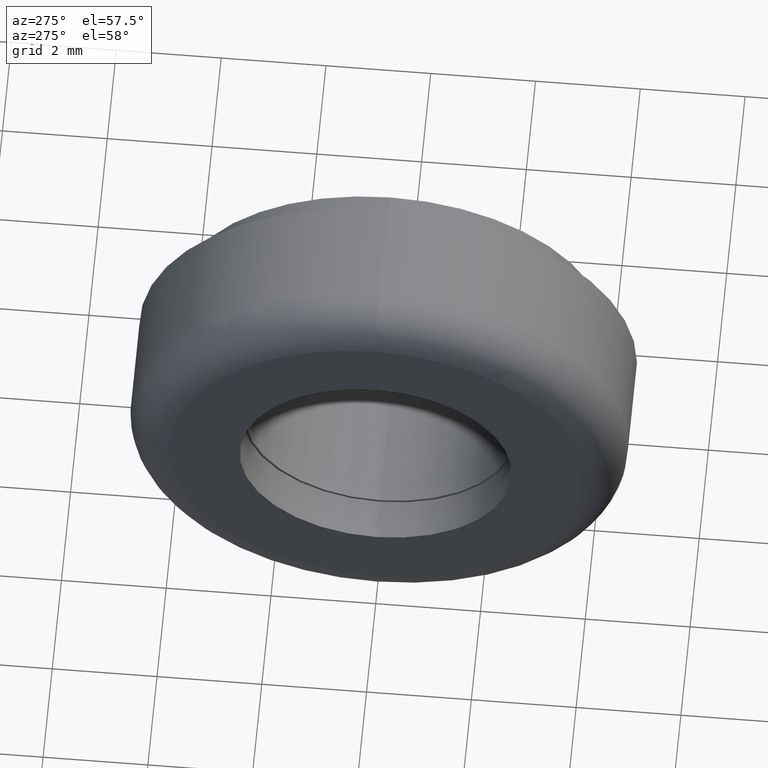
[diagram: clean part render]
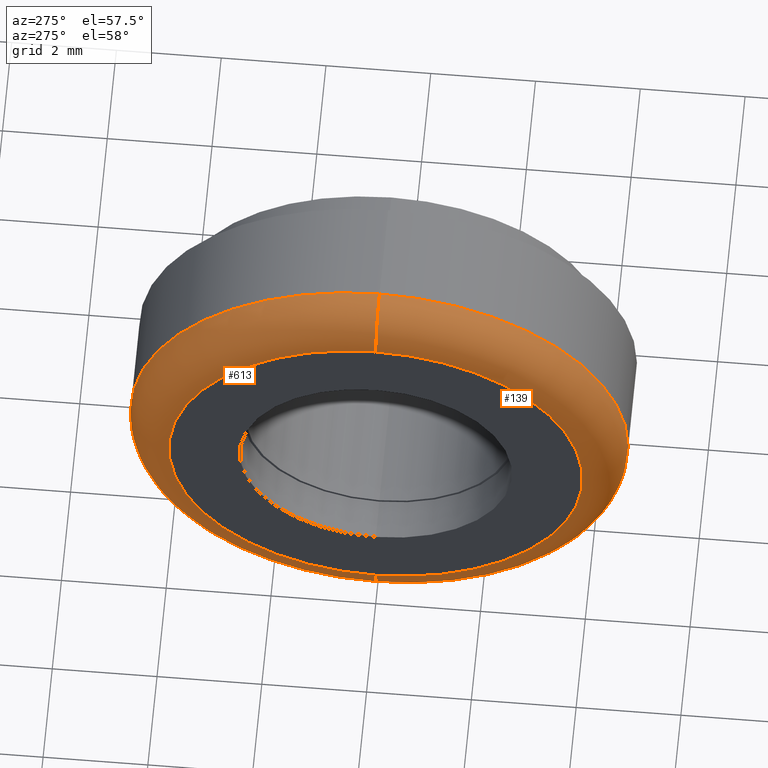
[diagram: same view with one multi-face feature highlighted, each face labeled with its STEP entity id]
A machine part, auxiliary view. The highlighted faces form ONE feature: a constant-radius fillet chain: 2 tangent blend faces with common blend radius 0.8 mm. The faces share edges in the B-rep.
Their STEP definitions:
[1] entity #139 (Torus):
#37 = TOROIDAL_SURFACE ( 'NONE', #553, 3.949999999999999700, 0.8000000000000000400 ) ;
#44 = ORIENTED_EDGE ( 'NONE', *, *, #503, .F. ) ;
#110 = CARTESIAN_POINT ( 'NONE',  ( 0.7999999999999999300, 4.837354856632044100E-016, 3.949999999999999700 ) ) ;
#123 = ORIENTED_EDGE ( 'NONE', *, *, #209, .F. ) ;
#139 = ADVANCED_FACE ( 'NONE', ( #191 ), #37, .T. ) ;
#159 = CIRCLE ( 'NONE', #680, 0.8000000000000003800 ) ;
#165 = DIRECTION ( 'NONE',  ( 1.000000000000000000, 0.0000000000000000000, 0.0000000000000000000 ) ) ;
#174 = DIRECTION ( 'NONE',  ( 0.0000000000000000000, 1.224646799147352000E-016, 1.000000000000000000 ) ) ;
#178 = EDGE_LOOP ( 'NONE', ( #123, #44, #647, #449 ) ) ;
#185 = CARTESIAN_POINT ( 'NONE',  ( 0.0000000000000000000, 5.327213576290986200E-016, 3.949999999999999700 ) ) ;
#191 = FACE_OUTER_BOUND ( 'NONE', #178, .T. ) ;
#195 = CARTESIAN_POINT ( 'NONE',  ( 0.0000000000000000000, 0.0000000000000000000, -3.949999999999999700 ) ) ;
#196 = AXIS2_PLACEMENT_3D ( 'NONE', #262, #653, #317 ) ;
#197 = DIRECTION ( 'NONE',  ( 0.0000000000000000000, -1.000000000000000000, 0.0000000000000000000 ) ) ;
#203 = AXIS2_PLACEMENT_3D ( 'NONE', #259, #646, #308 ) ;
#209 = EDGE_CURVE ( 'NONE', #282, #468, #598, .T. ) ;
#259 = CARTESIAN_POINT ( 'NONE',  ( 0.0000000000000000000, 0.0000000000000000000, 0.0000000000000000000 ) ) ;
#262 = CARTESIAN_POINT ( 'NONE',  ( 0.7999999999999999300, 0.0000000000000000000, 0.0000000000000000000 ) ) ;
#282 = VERTEX_POINT ( 'NONE', #185 ) ;
#292 = CARTESIAN_POINT ( 'NONE',  ( 0.7999999999999999300, 0.0000000000000000000, 4.750000000000000000 ) ) ;
#296 = CIRCLE ( 'NONE', #203, 3.949999999999999700 ) ;
#308 = DIRECTION ( 'NONE',  ( 0.0000000000000000000, 0.0000000000000000000, -1.000000000000000000 ) ) ;
#314 = VERTEX_POINT ( 'NONE', #195 ) ;
#317 = DIRECTION ( 'NONE',  ( 0.0000000000000000000, 0.0000000000000000000, -1.000000000000000000 ) ) ;
#320 = VERTEX_POINT ( 'NONE', #407 ) ;
#407 = CARTESIAN_POINT ( 'NONE',  ( 0.7999999999999999300, 5.817072295949926400E-016, -4.750000000000000000 ) ) ;
#449 = ORIENTED_EDGE ( 'NONE', *, *, #568, .F. ) ;
#468 = VERTEX_POINT ( 'NONE', #292 ) ;
#492 = DIRECTION ( 'NONE',  ( 0.0000000000000000000, 1.000000000000000000, -1.224646799147353200E-016 ) ) ;
#503 = EDGE_CURVE ( 'NONE', #314, #282, #296, .T. ) ;
#517 = DIRECTION ( 'NONE',  ( 0.0000000000000000000, 0.0000000000000000000, -1.000000000000000000 ) ) ;
#553 = AXIS2_PLACEMENT_3D ( 'NONE', #606, #165, #668 ) ;
#568 = EDGE_CURVE ( 'NONE', #468, #320, #713, .T. ) ;
#578 = CARTESIAN_POINT ( 'NONE',  ( 0.7999999999999999300, 0.0000000000000000000, -3.949999999999999700 ) ) ;
#596 = AXIS2_PLACEMENT_3D ( 'NONE', #110, #492, #174 ) ;
#598 = CIRCLE ( 'NONE', #596, 0.8000000000000003800 ) ;
#606 = CARTESIAN_POINT ( 'NONE',  ( 0.7999999999999999300, 0.0000000000000000000, 0.0000000000000000000 ) ) ;
#646 = DIRECTION ( 'NONE',  ( -1.000000000000000000, -0.0000000000000000000, -0.0000000000000000000 ) ) ;
#647 = ORIENTED_EDGE ( 'NONE', *, *, #669, .T. ) ;
#653 = DIRECTION ( 'NONE',  ( 1.000000000000000000, 0.0000000000000000000, 0.0000000000000000000 ) ) ;
#668 = DIRECTION ( 'NONE',  ( 0.0000000000000000000, 0.0000000000000000000, -1.000000000000000000 ) ) ;
#669 = EDGE_CURVE ( 'NONE', #314, #320, #159, .T. ) ;
#680 = AXIS2_PLACEMENT_3D ( 'NONE', #578, #197, #517 ) ;
#713 = CIRCLE ( 'NONE', #196, 4.750000000000000000 ) ;
[2] entity #613 (Torus):
#31 = CARTESIAN_POINT ( 'NONE',  ( 0.7999999999999999300, 0.0000000000000000000, 0.0000000000000000000 ) ) ;
#81 = AXIS2_PLACEMENT_3D ( 'NONE', #526, #207, #587 ) ;
#93 = DIRECTION ( 'NONE',  ( 0.0000000000000000000, 0.0000000000000000000, -1.000000000000000000 ) ) ;
#96 = FACE_OUTER_BOUND ( 'NONE', #380, .T. ) ;
#99 = ORIENTED_EDGE ( 'NONE', *, *, #669, .F. ) ;
#110 = CARTESIAN_POINT ( 'NONE',  ( 0.7999999999999999300, 4.837354856632044100E-016, 3.949999999999999700 ) ) ;
#131 = CIRCLE ( 'NONE', #231, 4.750000000000000000 ) ;
#159 = CIRCLE ( 'NONE', #680, 0.8000000000000003800 ) ;
#174 = DIRECTION ( 'NONE',  ( 0.0000000000000000000, 1.224646799147352000E-016, 1.000000000000000000 ) ) ;
#185 = CARTESIAN_POINT ( 'NONE',  ( 0.0000000000000000000, 5.327213576290986200E-016, 3.949999999999999700 ) ) ;
#195 = CARTESIAN_POINT ( 'NONE',  ( 0.0000000000000000000, 0.0000000000000000000, -3.949999999999999700 ) ) ;
#197 = DIRECTION ( 'NONE',  ( 0.0000000000000000000, -1.000000000000000000, 0.0000000000000000000 ) ) ;
#207 = DIRECTION ( 'NONE',  ( -1.000000000000000000, -0.0000000000000000000, -0.0000000000000000000 ) ) ;
#209 = EDGE_CURVE ( 'NONE', #282, #468, #598, .T. ) ;
#231 = AXIS2_PLACEMENT_3D ( 'NONE', #31, #423, #93 ) ;
#249 = TOROIDAL_SURFACE ( 'NONE', #303, 3.949999999999999700, 0.8000000000000000400 ) ;
#282 = VERTEX_POINT ( 'NONE', #185 ) ;
#292 = CARTESIAN_POINT ( 'NONE',  ( 0.7999999999999999300, 0.0000000000000000000, 4.750000000000000000 ) ) ;
#293 = ORIENTED_EDGE ( 'NONE', *, *, #209, .T. ) ;
#303 = AXIS2_PLACEMENT_3D ( 'NONE', #372, #648, #478 ) ;
#314 = VERTEX_POINT ( 'NONE', #195 ) ;
#320 = VERTEX_POINT ( 'NONE', #407 ) ;
#372 = CARTESIAN_POINT ( 'NONE',  ( 0.7999999999999999300, 0.0000000000000000000, 0.0000000000000000000 ) ) ;
#380 = EDGE_LOOP ( 'NONE', ( #595, #293, #729, #99 ) ) ;
#407 = CARTESIAN_POINT ( 'NONE',  ( 0.7999999999999999300, 5.817072295949926400E-016, -4.750000000000000000 ) ) ;
#423 = DIRECTION ( 'NONE',  ( 1.000000000000000000, 0.0000000000000000000, 0.0000000000000000000 ) ) ;
#468 = VERTEX_POINT ( 'NONE', #292 ) ;
#478 = DIRECTION ( 'NONE',  ( 0.0000000000000000000, 0.0000000000000000000, -1.000000000000000000 ) ) ;
#492 = DIRECTION ( 'NONE',  ( 0.0000000000000000000, 1.000000000000000000, -1.224646799147353200E-016 ) ) ;
#517 = DIRECTION ( 'NONE',  ( 0.0000000000000000000, 0.0000000000000000000, -1.000000000000000000 ) ) ;
#526 = CARTESIAN_POINT ( 'NONE',  ( 0.0000000000000000000, 0.0000000000000000000, 0.0000000000000000000 ) ) ;
#545 = EDGE_CURVE ( 'NONE', #282, #314, #726, .T. ) ;
#570 = EDGE_CURVE ( 'NONE', #320, #468, #131, .T. ) ;
#578 = CARTESIAN_POINT ( 'NONE',  ( 0.7999999999999999300, 0.0000000000000000000, -3.949999999999999700 ) ) ;
#587 = DIRECTION ( 'NONE',  ( 0.0000000000000000000, 0.0000000000000000000, -1.000000000000000000 ) ) ;
#595 = ORIENTED_EDGE ( 'NONE', *, *, #545, .F. ) ;
#596 = AXIS2_PLACEMENT_3D ( 'NONE', #110, #492, #174 ) ;
#598 = CIRCLE ( 'NONE', #596, 0.8000000000000003800 ) ;
#613 = ADVANCED_FACE ( 'NONE', ( #96 ), #249, .T. ) ;
#648 = DIRECTION ( 'NONE',  ( 1.000000000000000000, 0.0000000000000000000, 0.0000000000000000000 ) ) ;
#669 = EDGE_CURVE ( 'NONE', #314, #320, #159, .T. ) ;
#680 = AXIS2_PLACEMENT_3D ( 'NONE', #578, #197, #517 ) ;
#726 = CIRCLE ( 'NONE', #81, 3.949999999999999700 ) ;
#729 = ORIENTED_EDGE ( 'NONE', *, *, #570, .F. ) ;